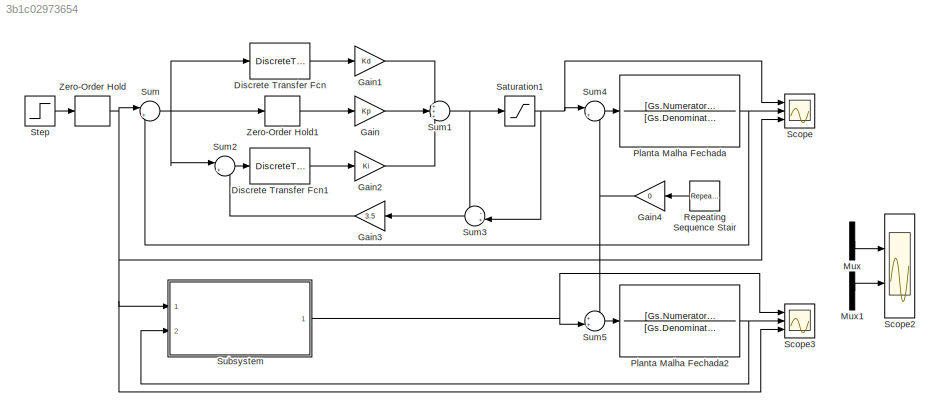
MODEL slx_3b1c02973654
KIND model
CONFIG AbsTol = auto
CONFIG EnableMultiTasking = off
CONFIG FixedStep = Ts
CONFIG MaxStep = auto
CONFIG MinStep = auto
CONFIG RelTol = 1e-3
CONFIG SampleTimeConstraint = Unconstrained
CONFIG Solver = FixedStepAuto
CONFIG SolverName = FixedStepAuto
CONFIG StartTime = 0.0
CONFIG StopTime = 1
BLOCK [DiscreteTransferFcn] Discrete Transfer Fcn
  Denominator = [1 0]
  InputPortMap = u0
  Numerator = [1 -1]
  Ports = [1, 1]
  SampleTime = Ts
BLOCK [DiscreteTransferFcn] Discrete Transfer Fcn1
  Denominator = [1 -1]
  InputPortMap = u0
  Numerator = [1 0]
  Ports = [1, 1]
  SampleTime = Ts
BLOCK [Gain] Gain
  Gain = Kp
  OutDataTypeStr = Inherit: Inherit via internal rule
  ParamDataTypeStr = Inherit: Inherit via internal rule
  SaturateOnIntegerOverflow = off
BLOCK [Gain] Gain1
  Gain = Kd
  OutDataTypeStr = Inherit: Inherit via internal rule
  ParamDataTypeStr = Inherit: Inherit via internal rule
  SaturateOnIntegerOverflow = off
BLOCK [Gain] Gain2
  Gain = Ki
  OutDataTypeStr = Inherit: Inherit via internal rule
  ParamDataTypeStr = Inherit: Inherit via internal rule
  SaturateOnIntegerOverflow = off
BLOCK [Gain] Gain3
  Gain = 3.5
  OutDataTypeStr = Inherit: Inherit via internal rule
  ParamDataTypeStr = Inherit: Inherit via internal rule
  SaturateOnIntegerOverflow = off
BLOCK [Gain] Gain4
  Gain = 0
  OutDataTypeStr = Inherit: Inherit via internal rule
  ParamDataTypeStr = Inherit: Inherit via internal rule
  SaturateOnIntegerOverflow = off
BLOCK [Mux] Mux
  DisplayOption = bar
  Inputs = 3
  Ports = [3, 1]
BLOCK [Mux] Mux1
  DisplayOption = bar
  Inputs = 2
  Ports = [2, 1]
BLOCK [TransferFcn] Planta Malha Fechada
  Denominator = [Gs.Denominator{1}]
  Numerator = [Gs.Numerator{1}]
BLOCK [TransferFcn] Planta Malha Fechada2
  Denominator = [Gs.Denominator{1}]
  Numerator = [Gs.Numerator{1}]
BLOCK [Reference] Repeating Sequence Stair  REF=simulink/Sources/Repeating
Sequence
Stair
  Ports = [0, 1]
  SourceBlock = simulink/Sources/Repeating\nSequence\nStair
  SourceProductBaseCode = SL
  SourceProductName = Simulink
  SourceType = Repeating Sequence Stair
BLOCK [Saturate] Saturation1
  InputPortMap = u0
  LowerLimit = -255
  Ports = [1, 1]
  UpperLimit = 255
BLOCK [Scope] Scope
  Floating = off
  NumInputPorts = 3
  Ports = [3]
  ScopeSpecificationString = Simulink.scopes.TimeScopeBlockCfg('CurrentConfiguration', extmgr.ConfigurationSet(extmgr.Configuration('Core','General UI',true),extmgr.Configuration('Core','Source UI',true),extmgr.Configuration('Sources','WiredSimulink',true),extmgr.Configuration('Visuals','Time Domain',true,'SerializedDisplays',{struct('MinYLimReal','-41.23856','MaxYLimReal','287.9154','YLabelReal','','MinYLimMag','0.00000','Ma...<+2037ch>
BLOCK [Scope] Scope2
  Floating = off
  NumInputPorts = 2
  Ports = [2]
  ScopeSpecificationString = Simulink.scopes.TimeScopeBlockCfg('CurrentConfiguration', extmgr.ConfigurationSet(extmgr.Configuration('Core','General UI',true),extmgr.Configuration('Core','Source UI',true),extmgr.Configuration('Sources','WiredSimulink',true,'DataLoggingVariableName','ScopeData2'),extmgr.Configuration('Visuals','Time Domain',true,'SerializedDisplays',{struct('MinYLimReal','-132.6011','MaxYLimReal','1193.40988','...<+2109ch>
BLOCK [Scope] Scope3
  Floating = off
  NumInputPorts = 3
  Ports = [3]
  ScopeSpecificationString = Simulink.scopes.TimeScopeBlockCfg('CurrentConfiguration', extmgr.ConfigurationSet(extmgr.Configuration('Core','General UI',true),extmgr.Configuration('Core','Source UI',true),extmgr.Configuration('Sources','WiredSimulink',true,'DataLoggingVariableName','ScopeData3'),extmgr.Configuration('Visuals','Time Domain',true,'SerializedDisplays',{struct('MinYLimReal','-318.75','MaxYLimReal','318.75','YLabel...<+2082ch>
BLOCK [Step] Step
  After = 1023
  SampleTime = 0
  Time = Ts
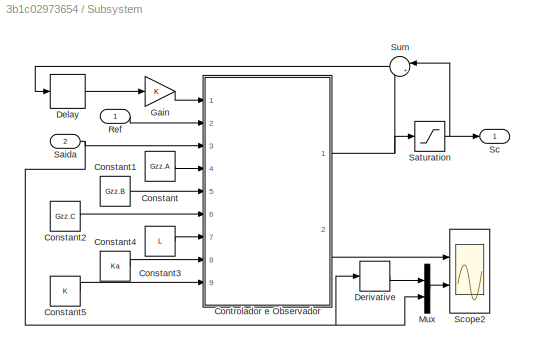
BLOCK [SubSystem] Subsystem
  Ports = [2, 1]
  RequestExecContextInheritance = off
BLOCK [Constant] Subsystem/Constant
  Value = Gzz.A
BLOCK [Constant] Subsystem/Constant1
  Value = Gzz.B
BLOCK [Constant] Subsystem/Constant2
  Value = Gzz.C
BLOCK [Constant] Subsystem/Constant3
  Value = L
BLOCK [Constant] Subsystem/Constant4
  Value = Ka
BLOCK [Constant] Subsystem/Constant5
  Value = K
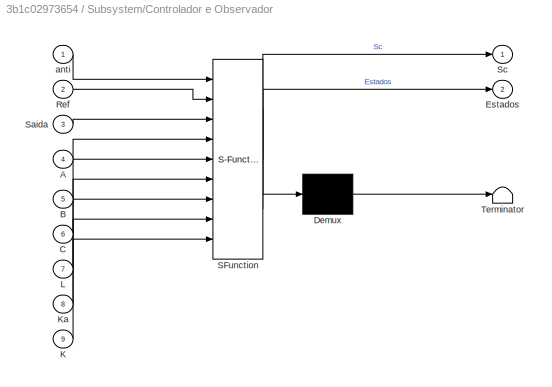
BLOCK [SubSystem] Subsystem/Controlador e Observador
  ErrorFcn = Stateflow.Translate.translate
  PermitHierarchicalResolution = ExplicitOnly
  Ports = [9, 2]
  RequestExecContextInheritance = off
  SFBlockType = MATLAB Function
  SystemSampleTime = Ts
  TreatAsAtomicUnit = on
BLOCK [Demux] Subsystem/Controlador e Observador/ Demux 
  Outputs = 1
  Ports = [1, 1]
BLOCK [S-Function] Subsystem/Controlador e Observador/ SFunction 
  EnableBusSupport = on
  FunctionName = sf_sfun
  PortCounts = [9 3]
  Ports = [9, 3]
  SFcnIsStateOwnerBlock = off
  SFunctionDeploymentMode = off
  Tag = Stateflow S-Function PID 2
BLOCK [Terminator] Subsystem/Controlador e Observador/ Terminator 
BLOCK [Inport] Subsystem/Controlador e Observador/A
  IconDisplay = Port number
  Port = 4
BLOCK [Inport] Subsystem/Controlador e Observador/B
  IconDisplay = Port number
  Port = 5
BLOCK [Inport] Subsystem/Controlador e Observador/C
  IconDisplay = Port number
  Port = 6
BLOCK [Outport] Subsystem/Controlador e Observador/Estados
  IconDisplay = Port number
  Port = 2
BLOCK [Inport] Subsystem/Controlador e Observador/K
  IconDisplay = Port number
  Port = 9
BLOCK [Inport] Subsystem/Controlador e Observador/Ka
  IconDisplay = Port number
  Port = 8
BLOCK [Inport] Subsystem/Controlador e Observador/L
  IconDisplay = Port number
  Port = 7
BLOCK [Inport] Subsystem/Controlador e Observador/Ref
  IconDisplay = Port number
  Port = 2
BLOCK [Inport] Subsystem/Controlador e Observador/Saida
  IconDisplay = Port number
  Port = 3
BLOCK [Outport] Subsystem/Controlador e Observador/Sc
  IconDisplay = Port number
BLOCK [Inport] Subsystem/Controlador e Observador/anti
  IconDisplay = Port number
BLOCK [Delay] Subsystem/Delay
  DelayLength = 1
  InputPortMap = u0
  Ports = [1, 1]
  SampleTime = Ts
BLOCK [Derivative] Subsystem/Derivative
  CoefficientInTFapproximation = Ts
BLOCK [Gain] Subsystem/Gain
  OutDataTypeStr = Inherit: Inherit via internal rule
  ParamDataTypeStr = Inherit: Inherit via internal rule
  SaturateOnIntegerOverflow = off
BLOCK [Mux] Subsystem/Mux
  DisplayOption = bar
  Inputs = 2
  Ports = [2, 1]
BLOCK [Inport] Subsystem/Ref
  IconDisplay = Port number
BLOCK [Inport] Subsystem/Saida
  IconDisplay = Port number
  Port = 2
BLOCK [Saturate] Subsystem/Saturation
  InputPortMap = u0
  LowerLimit = -255
  Ports = [1, 1]
  UpperLimit = 255
BLOCK [Outport] Subsystem/Sc
  IconDisplay = Port number
BLOCK [Scope] Subsystem/Scope2
  Floating = off
  NumInputPorts = 2
  Ports = [2]
  ScopeSpecificationString = Simulink.scopes.TimeScopeBlockCfg('CurrentConfiguration', extmgr.ConfigurationSet(extmgr.Configuration('Core','General UI',true),extmgr.Configuration('Core','Source UI',true),extmgr.Configuration('Sources','WiredSimulink',true,'DataLoggingVariableName','ScopeData2'),extmgr.Configuration('Visuals','Time Domain',true,'SerializedDisplays',{struct('MinYLimReal','-23.97312','MaxYLimReal','167.9152','YL...<+2124ch>
BLOCK [Sum] Subsystem/Sum
  IconShape = round
  InputSameDT = off
  Inputs = |+-
  OutDataTypeStr = Inherit: Inherit via internal rule
  Ports = [2, 1]
  SaturateOnIntegerOverflow = off
BLOCK [Sum] Sum
  IconShape = round
  InputSameDT = off
  Inputs = |+-
  OutDataTypeStr = Inherit: Inherit via internal rule
  Ports = [2, 1]
  SaturateOnIntegerOverflow = off
BLOCK [Sum] Sum1
  IconShape = round
  InputSameDT = off
  Inputs = +++
  OutDataTypeStr = Inherit: Inherit via internal rule
  Ports = [3, 1]
  SaturateOnIntegerOverflow = off
BLOCK [Sum] Sum2
  IconShape = round
  InputSameDT = off
  Inputs = |++
  OutDataTypeStr = Inherit: Inherit via internal rule
  Ports = [2, 1]
  SaturateOnIntegerOverflow = off
BLOCK [Sum] Sum3
  IconShape = round
  InputSameDT = off
  Inputs = -+|
  OutDataTypeStr = Inherit: Inherit via internal rule
  Ports = [2, 1]
  SaturateOnIntegerOverflow = off
BLOCK [Sum] Sum4
  IconShape = round
  InputSameDT = off
  Inputs = |++
  OutDataTypeStr = Inherit: Inherit via internal rule
  Ports = [2, 1]
  SaturateOnIntegerOverflow = off
BLOCK [Sum] Sum5
  IconShape = round
  InputSameDT = off
  Inputs = ++|
  OutDataTypeStr = Inherit: Inherit via internal rule
  Ports = [2, 1]
  SaturateOnIntegerOverflow = off
BLOCK [ZeroOrderHold] Zero-Order Hold
  SampleTime = -1
BLOCK [ZeroOrderHold] Zero-Order Hold1
  SampleTime = Ts
LINE Discrete Transfer Fcn1:1 -> Gain2:1
LINE Discrete Transfer Fcn:1 -> Gain1:1
LINE Gain1:1 -> Sum1:1
LINE Gain2:1 -> Sum1:3
LINE Gain3:1 -> Sum2:2
NET Gain4:1 -> Sum4:2, Sum5:1
LINE Gain:1 -> Sum1:2
LINE Mux1:1 -> Scope2:2
LINE Mux:1 -> Scope2:1
NET Planta Malha Fechada2:1 -> Scope3:2, Subsystem:2
NET Planta Malha Fechada:1 -> Scope:2, Sum:2
LINE Repeating Sequence Stair:1 -> Gain4:1
NET Saturation1:1 -> Scope:1, Sum3:2, Sum4:1
LINE Step:1 -> Zero-Order Hold:1
LINE Subsystem/Constant1:1 -> Subsystem/Controlador e Observador:5
LINE Subsystem/Constant2:1 -> Subsystem/Controlador e Observador:6
LINE Subsystem/Constant3:1 -> Subsystem/Controlador e Observador:7
LINE Subsystem/Constant4:1 -> Subsystem/Controlador e Observador:8
LINE Subsystem/Constant5:1 -> Subsystem/Controlador e Observador:9
LINE Subsystem/Constant:1 -> Subsystem/Controlador e Observador:4
NET Subsystem/Controlador e Observador:1 -> Subsystem/Saturation:1, Subsystem/Sum:2
LINE Subsystem/Controlador e Observador:2 -> Subsystem/Scope2:1
LINE Subsystem/Delay:1 -> Subsystem/Gain:1
LINE Subsystem/Derivative:1 -> Subsystem/Mux:1
LINE Subsystem/Gain:1 -> Subsystem/Controlador e Observador:1
LINE Subsystem/Mux:1 -> Subsystem/Scope2:2
LINE Subsystem/Ref:1 -> Subsystem/Controlador e Observador:2
NET Subsystem/Saida:1 -> Subsystem/Controlador e Observador:3, Subsystem/Derivative:1, Subsystem/Mux:2
NET Subsystem/Saturation:1 -> Subsystem/Sc:1, Subsystem/Sum:1
LINE Subsystem/Sum:1 -> Subsystem/Delay:1
NET Subsystem:1 -> Scope3:1, Sum5:2
NET Sum1:1 -> Saturation1:1, Sum3:1
LINE Sum2:1 -> Discrete Transfer Fcn1:1
LINE Sum3:1 -> Gain3:1
LINE Sum4:1 -> Planta Malha Fechada:1
LINE Sum5:1 -> Planta Malha Fechada2:1
NET Sum:1 -> Discrete Transfer Fcn:1, Sum2:1, Zero-Order Hold1:1
LINE Zero-Order Hold1:1 -> Gain:1
NET Zero-Order Hold:1 -> Scope3:3, Scope:3, Subsystem:1, Sum:1
note: NET lines group one-source signal fan-out (src -> all destinations, sorted); 1:1 wires keep LINE
CHART Subsystem/Controlador e Observador states=1 transitions=1
  STATE_LABEL 'eML_blk_kernel()'
  STATE_LABEL "SCRIPT:\nfunction [Sc,Estados] = fcn(anti, Ref,Saida,A,B,C,L,Ka,K)\n\npersistent EstadosA;\npersistent ScA;\npersistent int;\nif isempty(EstadosA)\n    EstadosA = [0; 0];\nend\nif isempty(ScA)\n    ScA = 0;\nend\nif isempty(int)\n    int = 0; \nend\n\n%% Observador\n\nEstadosA = A*EstadosA + B*ScA + L*(Saida-C'*EstadosA);\n\n%% Controlador\n\nint = int + Ref - Saida + anti; %Integrador\nSc  = 0;\nSc  = int*(-Ka) - K'*Est...<+60ch>"
